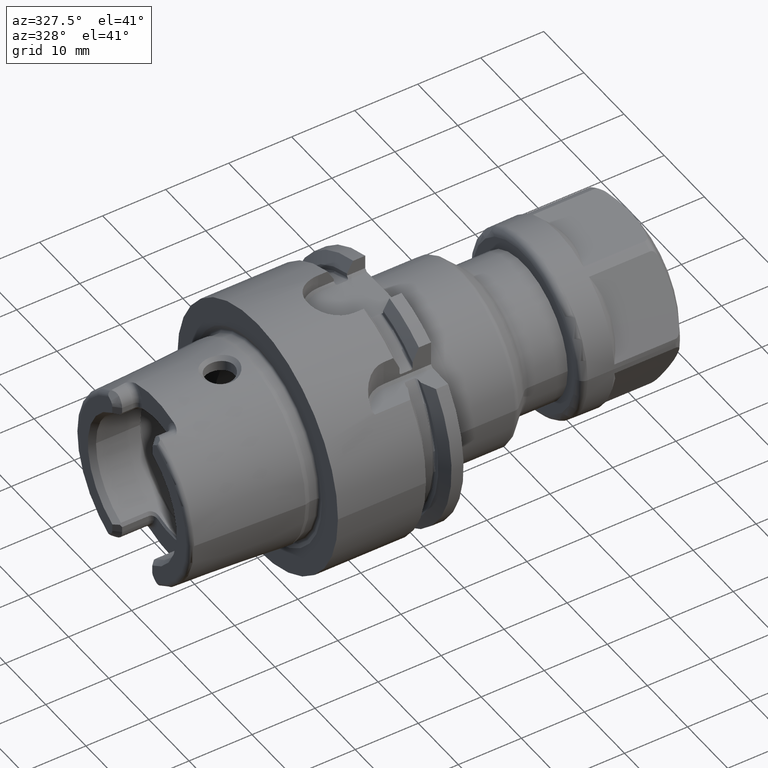
[diagram: clean part render]
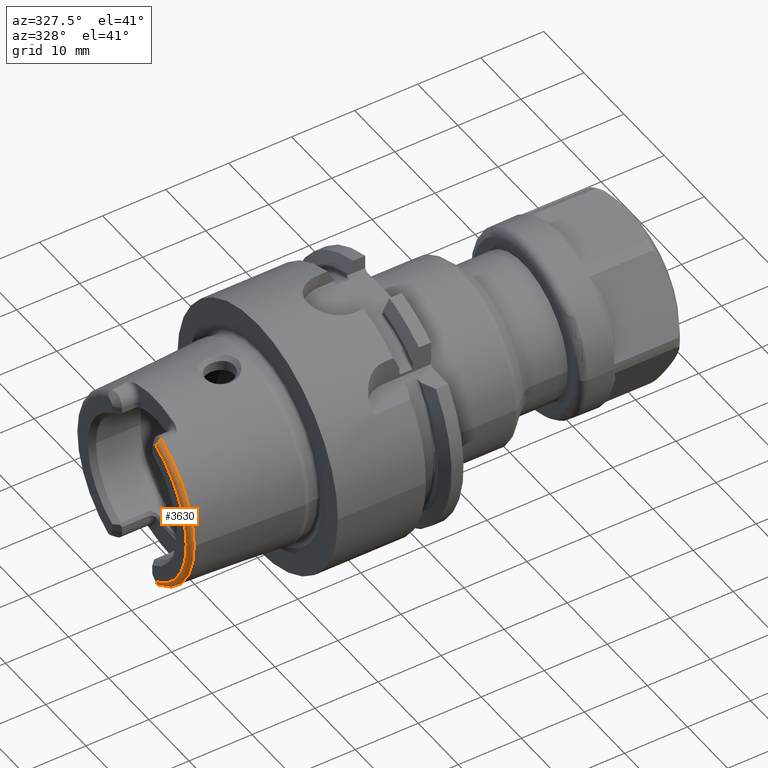
[diagram: same view with one face highlighted and labeled with its STEP entity id]
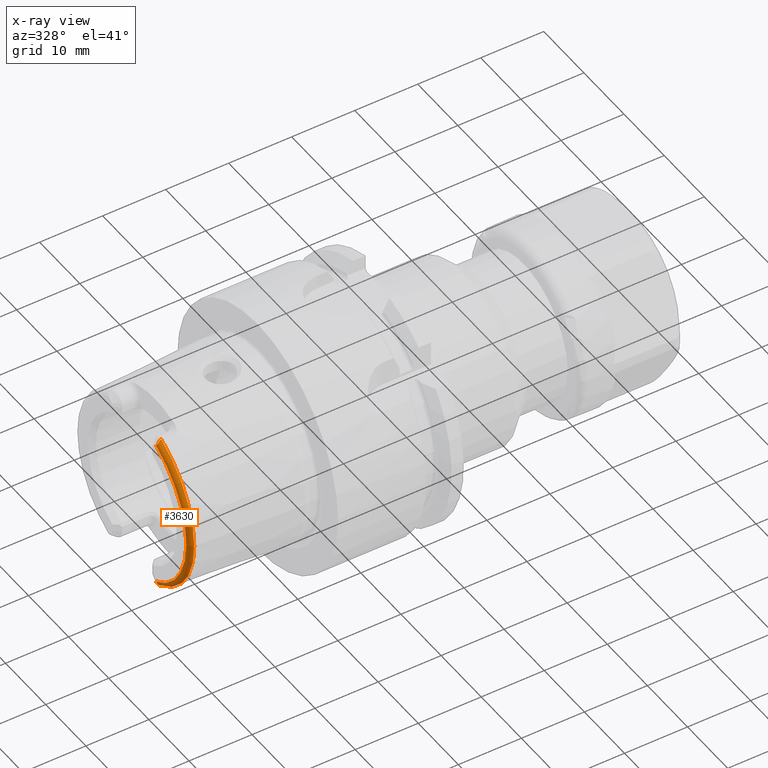
[diagram: x-ray of the same camera — body ghosted, the highlighted face saturated]
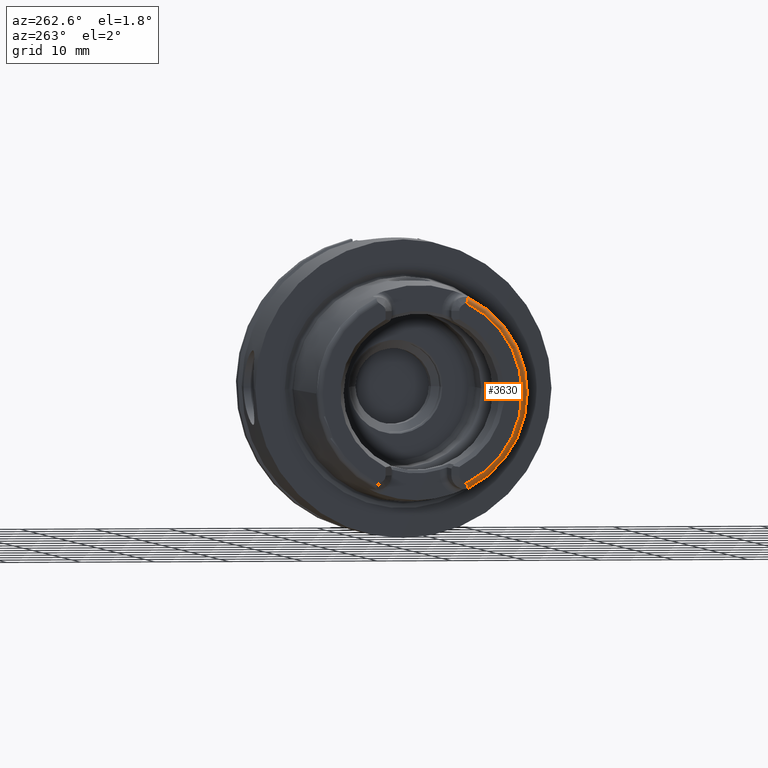
[diagram: same view with one face highlighted and labeled with its STEP entity id]
A machine part, auxiliary view. The second image highlights one B-rep face of the part: STEP entity #3630.
The next image is the same camera in x-ray: the body ghosted, the highlighted face saturated — about 0% of this face is hidden behind the body in this view.
A second angle (auxiliary view) of the same face is appended — the face is thin or edge-on in the first view.
In plain terms, the highlighted toroidal blend (fillet) surface has major radius 13.446 mm and minor (blend) radius 0.8 mm.
Its self-contained STEP definition (entity closure, byte-faithful):
#344=CARTESIAN_POINT('',(-1.99E1,-5.861946291559E0,-1.210091492411E1));
#345=CARTESIAN_POINT('',(-1.99E1,-5.887620623430E0,-1.211866827891E1));
#346=CARTESIAN_POINT('',(-1.989728681245E1,-5.936830643930E0,
-1.215599482338E1));
#347=CARTESIAN_POINT('',(-1.988358517250E1,-6.004825612755E0,
-1.221967049725E1));
#348=CARTESIAN_POINT('',(-1.985952692540E1,-6.062274284079E0,
-1.228864506132E1));
#349=CARTESIAN_POINT('',(-1.982531616070E1,-6.107349309172E0,
-1.236140680537E1));
#350=CARTESIAN_POINT('',(-1.977889126483E1,-6.140000651410E0,
-1.244042762158E1));
#351=CARTESIAN_POINT('',(-1.971882771655E1,-6.156892338292E0,
-1.252513266328E1));
#352=CARTESIAN_POINT('',(-1.964546656454E1,-6.155017279759E0,
-1.261302793589E1));
#353=CARTESIAN_POINT('',(-1.955593123842E1,-6.130790777275E0,
-1.270513199159E1));
#354=CARTESIAN_POINT('',(-1.945178453020E1,-6.080360484488E0,
-1.279688097093E1));
#355=CARTESIAN_POINT('',(-1.937737472390E1,-6.030707275268E0,
-1.285301342640E1));
#356=CARTESIAN_POINT('',(-1.933856537110E1,-6.001498304814E0,-1.288E1));
#358=CARTESIAN_POINT('',(-1.99E1,0.E0,0.E0));
#359=DIRECTION('',(-1.E0,0.E0,0.E0));
#360=DIRECTION('',(0.E0,-4.359625258411E-1,-8.999648193470E-1));
#361=AXIS2_PLACEMENT_3D('',#358,#359,#360);
#363=CARTESIAN_POINT('',(-1.933856537110E1,-6.001498304814E0,1.288E1));
#364=CARTESIAN_POINT('',(-1.937741624492E1,-6.030738525111E0,1.285298455424E1));
#365=CARTESIAN_POINT('',(-1.945189770967E1,-6.080432291458E0,1.279679302161E1));
#366=CARTESIAN_POINT('',(-1.955612285287E1,-6.130869348046E0,1.270495335874E1));
#367=CARTESIAN_POINT('',(-1.964568635498E1,-6.155054243125E0,1.261278627615E1));
#368=CARTESIAN_POINT('',(-1.971903364919E1,-6.156869370658E0,1.252486641047E1));
#369=CARTESIAN_POINT('',(-1.977905858015E1,-6.139919780195E0,1.244016828005E1));
#370=CARTESIAN_POINT('',(-1.982542666297E1,-6.107236062619E0,1.236119414965E1));
#371=CARTESIAN_POINT('',(-1.985958687227E1,-6.062161703514E0,1.228849433094E1));
#372=CARTESIAN_POINT('',(-1.988361122E1,-6.004727620915E0,1.221957106927E1));
#373=CARTESIAN_POINT('',(-1.989729045519E1,-5.936777890354E0,1.215595391639E1));
#374=CARTESIAN_POINT('',(-1.99E1,-5.887601752234E0,1.211865522981E1));
#375=CARTESIAN_POINT('',(-1.99E1,-5.861946291559E0,1.210091492411E1));
#377=CARTESIAN_POINT('',(-1.914002979389E1,-6.084832258490E0,1.288E1));
#378=CARTESIAN_POINT('',(-1.915835311417E1,-6.082683165194E0,1.288E1));
#379=CARTESIAN_POINT('',(-1.919411876430E1,-6.075541055501E0,1.288E1));
#380=CARTESIAN_POINT('',(-1.924543426645E1,-6.057213687171E0,1.288E1));
#381=CARTESIAN_POINT('',(-1.929394227686E1,-6.032308701799E0,1.288E1));
#382=CARTESIAN_POINT('',(-1.932397586650E1,-6.012290336726E0,1.288E1));
#383=CARTESIAN_POINT('',(-1.933856537110E1,-6.001498304814E0,1.288E1));
#385=CARTESIAN_POINT('',(-1.914002979389E1,0.E0,0.E0));
#386=DIRECTION('',(1.E0,0.E0,0.E0));
#387=DIRECTION('',(0.E0,-4.271561162710E-1,9.041778875488E-1));
#388=AXIS2_PLACEMENT_3D('',#385,#386,#387);
#390=CARTESIAN_POINT('',(-1.914002979389E1,0.E0,0.E0));
#391=DIRECTION('',(-1.E0,0.E0,0.E0));
#392=DIRECTION('',(0.E0,-4.271561162710E-1,-9.041778875488E-1));
#393=AXIS2_PLACEMENT_3D('',#390,#391,#392);
#395=CARTESIAN_POINT('',(-1.933856537110E1,-6.001498304814E0,-1.288E1));
#396=CARTESIAN_POINT('',(-1.930590454157E1,-6.025657912976E0,-1.288E1));
#397=CARTESIAN_POINT('',(-1.923986516807E1,-6.063370586492E0,-1.288E1));
#398=CARTESIAN_POINT('',(-1.917341303165E1,-6.080916827696E0,-1.288E1));
#399=CARTESIAN_POINT('',(-1.914002979389E1,-6.084832258490E0,-1.288E1));
#2789=CARTESIAN_POINT('',(-1.914002979389E1,-1.424498450733E1,0.E0));
#2790=VERTEX_POINT('',#2789);
#2805=CARTESIAN_POINT('',(-1.914002979389E1,-6.084832258490E0,1.288E1));
#2806=VERTEX_POINT('',#2805);
#2809=CARTESIAN_POINT('',(-1.914002979389E1,-6.084832258490E0,-1.288E1));
#2810=VERTEX_POINT('',#2809);
#2910=CARTESIAN_POINT('',(-1.99E1,-5.861946291559E0,1.210091492411E1));
#2911=VERTEX_POINT('',#2910);
#2912=VERTEX_POINT('',#363);
#2942=CARTESIAN_POINT('',(-1.99E1,-5.861946291559E0,-1.210091492411E1));
#2943=VERTEX_POINT('',#2942);
#2944=VERTEX_POINT('',#356);
#3613=CARTESIAN_POINT('',(-1.91E1,0.E0,0.E0));
#3614=DIRECTION('',(1.E0,0.E0,0.E0));
#3615=DIRECTION('',(0.E0,-1.E0,0.E0));
#3616=AXIS2_PLACEMENT_3D('',#3613,#3614,#3615);
#3617=TOROIDAL_SURFACE('',#3616,1.344598662523E1,8.E-1);
#3619=ORIENTED_EDGE('',*,*,#3618,.F.);
#3620=ORIENTED_EDGE('',*,*,#3406,.T.);
#3621=ORIENTED_EDGE('',*,*,#3363,.F.);
#3622=ORIENTED_EDGE('',*,*,#3346,.F.);
#3623=ORIENTED_EDGE('',*,*,#3323,.T.);
#3625=ORIENTED_EDGE('',*,*,#3624,.F.);
#3627=ORIENTED_EDGE('',*,*,#3626,.F.);
#3628=EDGE_LOOP('',(#3619,#3620,#3621,#3622,#3623,#3625,#3627));
#3629=FACE_OUTER_BOUND('',#3628,.F.);
#3630=ADVANCED_FACE('',(#3629),#3617,.T.);
#357=B_SPLINE_CURVE_WITH_KNOTS('',3,(#344,#345,#346,#347,#348,#349,#350,#351,
#352,#353,#354,#355,#356),.UNSPECIFIED.,.F.,.F.,(4,1,1,1,1,1,1,1,1,1,4),(0.E0,
1.E-1,2.E-1,3.E-1,4.E-1,5.E-1,6.E-1,7.E-1,8.E-1,9.E-1,1.E0),.UNSPECIFIED.);
#362=CIRCLE('',#361,1.344598662523E1);
#376=B_SPLINE_CURVE_WITH_KNOTS('',3,(#363,#364,#365,#366,#367,#368,#369,#370,
#371,#372,#373,#374,#375),.UNSPECIFIED.,.F.,.F.,(4,1,1,1,1,1,1,1,1,1,4),(0.E0,
1.E-1,2.E-1,3.E-1,4.E-1,5.E-1,6.E-1,7.E-1,8.E-1,9.E-1,1.E0),.UNSPECIFIED.);
#384=B_SPLINE_CURVE_WITH_KNOTS('',3,(#377,#378,#379,#380,#381,#382,#383),
.UNSPECIFIED.,.F.,.F.,(4,1,1,1,4),(0.E0,2.5E-1,5.E-1,7.5E-1,1.E0),
.UNSPECIFIED.);
#389=CIRCLE('',#388,1.424498450733E1);
#394=CIRCLE('',#393,1.424498450733E1);
#400=B_SPLINE_CURVE_WITH_KNOTS('',3,(#395,#396,#397,#398,#399),.UNSPECIFIED.,
.F.,.F.,(4,1,4),(0.E0,5.E-1,1.E0),.UNSPECIFIED.);
#3323=EDGE_CURVE('',#2806,#2790,#389,.T.);
#3346=EDGE_CURVE('',#2806,#2912,#384,.T.);
#3363=EDGE_CURVE('',#2912,#2911,#376,.T.);
#3406=EDGE_CURVE('',#2943,#2911,#362,.T.);
#3618=EDGE_CURVE('',#2943,#2944,#357,.T.);
#3624=EDGE_CURVE('',#2810,#2790,#394,.T.);
#3626=EDGE_CURVE('',#2944,#2810,#400,.T.);